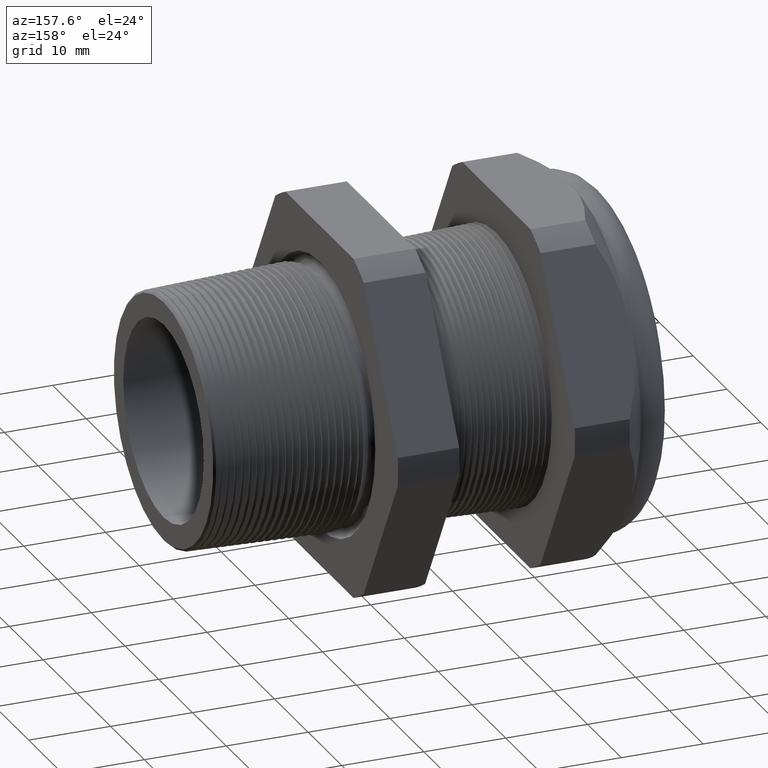
[diagram: clean part render]
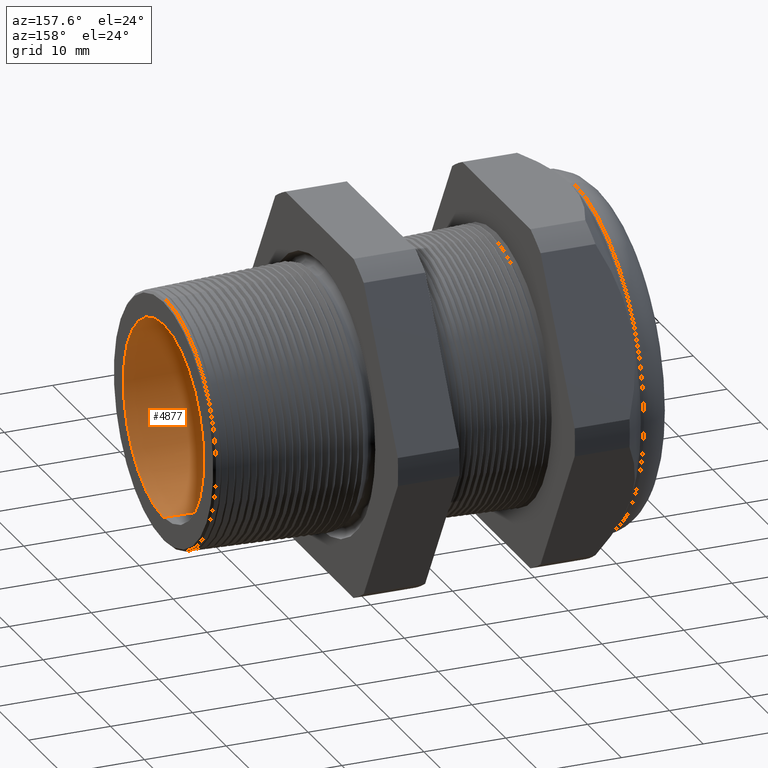
[diagram: same view with one face highlighted and labeled with its STEP entity id]
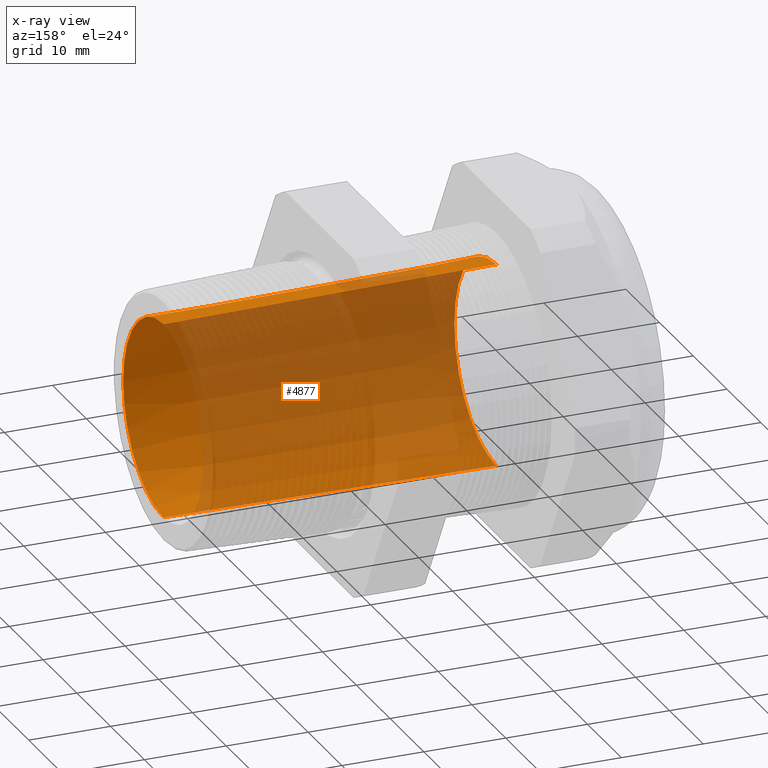
[diagram: x-ray of the same camera — body ghosted, the highlighted face saturated]
A machine part, auxiliary view. The second image highlights one B-rep face of the part: STEP entity #4877.
The next image is the same camera in x-ray: the body ghosted, the highlighted face saturated — about 79% of this face is hidden behind the body in this view.
In plain terms, the highlighted conical surface has half-angle 0.748 deg.
Its self-contained STEP definition (entity closure, byte-faithful):
#2559 = VERTEX_POINT ( 'NONE', #3044 ) ;
#2564 = ORIENTED_EDGE ( 'NONE', *, *, #2566, .F. ) ;
#2565 = VERTEX_POINT ( 'NONE', #3096 ) ;
#2566 = EDGE_CURVE ( 'NONE', #2559, #2565, #3095, .T. ) ;
#3044 = CARTESIAN_POINT ( 'NONE',  ( -1.160314960629921200, 6.000769315822029800E-017, 0.4899999999999999900 ) ) ;
#3091 = DIRECTION ( 'NONE',  ( 0.0000000000000000000, 0.0000000000000000000, -1.000000000000000000 ) ) ;
#3092 = DIRECTION ( 'NONE',  ( 1.000000000000000000, 0.0000000000000000000, 0.0000000000000000000 ) ) ;
#3093 = CARTESIAN_POINT ( 'NONE',  ( -1.160314960629921200, 0.0000000000000000000, 0.0000000000000000000 ) ) ;
#3094 = AXIS2_PLACEMENT_3D ( 'NONE', #3093, #3092, #3091 ) ;
#3095 = CIRCLE ( 'NONE', #3094, 0.4899999999999999900 ) ;
#3096 = CARTESIAN_POINT ( 'NONE',  ( -1.160314960629921200, 0.0000000000000000000, -0.4899999999999999900 ) ) ;
#3115 = DIRECTION ( 'NONE',  ( -0.9999148586493628000, 1.598037156080085500E-018, -0.01304896364562174900 ) ) ;
#3116 = VECTOR ( 'NONE', #3115, 39.37007874015748100 ) ;
#3117 = CARTESIAN_POINT ( 'NONE',  ( -1.160314960629921200, 6.000769315822029800E-017, -0.4899999999999999900 ) ) ;
#3118 = LINE ( 'NONE', #3117, #3116 ) ;
#3119 = DIRECTION ( 'NONE',  ( 0.0000000000000000000, 0.0000000000000000000, -1.000000000000000000 ) ) ;
#3120 = DIRECTION ( 'NONE',  ( 1.000000000000000000, 0.0000000000000000000, 0.0000000000000000000 ) ) ;
#3121 = CARTESIAN_POINT ( 'NONE',  ( 0.4400000000000001100, 0.0000000000000000000, 0.0000000000000000000 ) ) ;
#3122 = AXIS2_PLACEMENT_3D ( 'NONE', #3121, #3120, #3119 ) ;
#3123 = CIRCLE ( 'NONE', #3122, 0.4691157701456586900 ) ;
#3124 = CARTESIAN_POINT ( 'NONE',  ( 0.4400000000000001100, 0.0000000000000000000, 0.4691157701456586900 ) ) ;
#3125 = CARTESIAN_POINT ( 'NONE',  ( 0.4400000000000001100, 5.872890289603146600E-017, -0.4691157701456586900 ) ) ;
#3158 = DIRECTION ( 'NONE',  ( 0.0000000000000000000, 0.0000000000000000000, 1.000000000000000000 ) ) ;
#3159 = DIRECTION ( 'NONE',  ( -1.000000000000000000, 0.0000000000000000000, 0.0000000000000000000 ) ) ;
#3160 = CARTESIAN_POINT ( 'NONE',  ( -1.160314960629921200, 0.0000000000000000000, 0.0000000000000000000 ) ) ;
#3161 = AXIS2_PLACEMENT_3D ( 'NONE', #3160, #3159, #3158 ) ;
#3162 = CONICAL_SURFACE ( 'NONE', #3161, 0.4899999999999999900, 0.01304933399369762400 ) ;
#3163 = FACE_OUTER_BOUND ( 'NONE', #4076, .T. ) ;
#3256 = DIRECTION ( 'NONE',  ( -0.9999148586493628000, 0.0000000000000000000, 0.01304896364562174900 ) ) ;
#3257 = VECTOR ( 'NONE', #3256, 39.37007874015748100 ) ;
#3258 = CARTESIAN_POINT ( 'NONE',  ( -1.160314960629921200, 0.0000000000000000000, 0.4899999999999999900 ) ) ;
#3259 = LINE ( 'NONE', #3258, #3257 ) ;
#3917 = ORIENTED_EDGE ( 'NONE', *, *, #4094, .T. ) ;
#3928 = VERTEX_POINT ( 'NONE', #3125 ) ;
#3937 = VERTEX_POINT ( 'NONE', #3124 ) ;
#3960 = EDGE_CURVE ( 'NONE', #3937, #3928, #3123, .T. ) ;
#3965 = ORIENTED_EDGE ( 'NONE', *, *, #3960, .T. ) ;
#4076 = EDGE_LOOP ( 'NONE', ( #3965, #3917, #2564, #4909 ) ) ;
#4094 = EDGE_CURVE ( 'NONE', #3928, #2565, #3118, .T. ) ;
#4877 = ADVANCED_FACE ( 'NONE', ( #3163 ), #3162, .F. ) ;
#4909 = ORIENTED_EDGE ( 'NONE', *, *, #4923, .F. ) ;
#4923 = EDGE_CURVE ( 'NONE', #3937, #2559, #3259, .T. ) ;